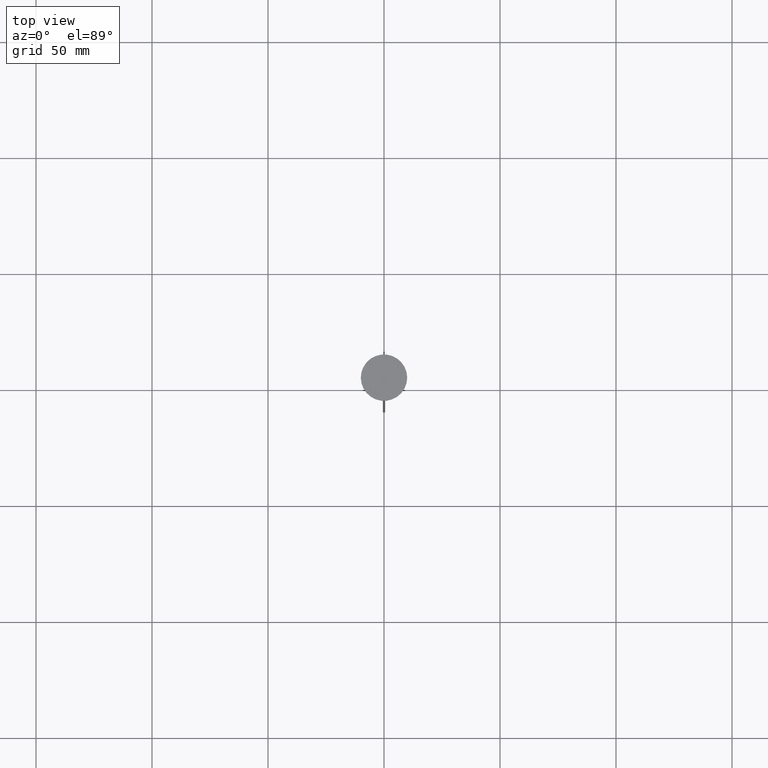
[diagram: clean part render]
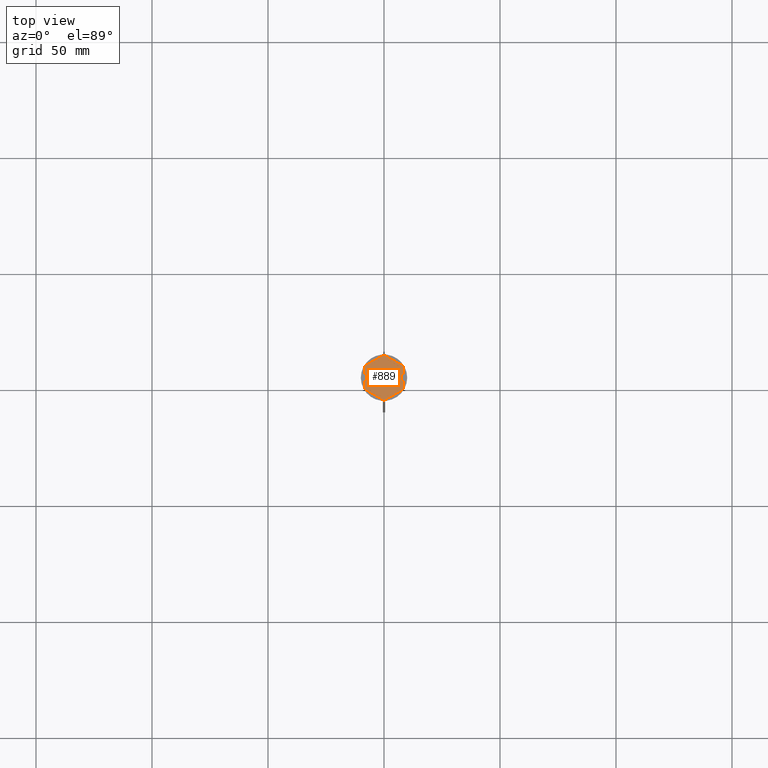
[diagram: same view with one face highlighted and labeled with its STEP entity id]
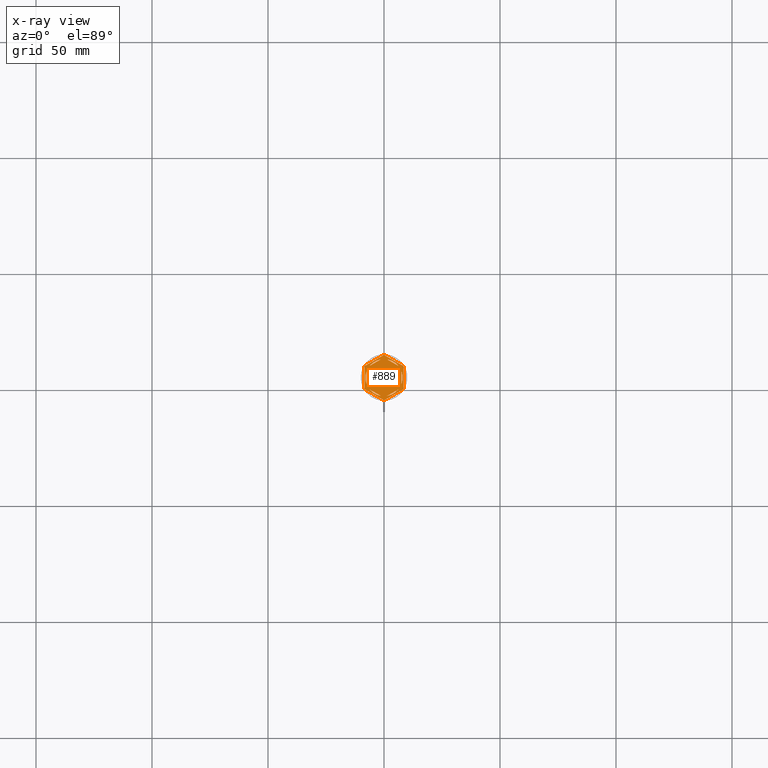
[diagram: x-ray of the same camera — body ghosted, the highlighted face saturated]
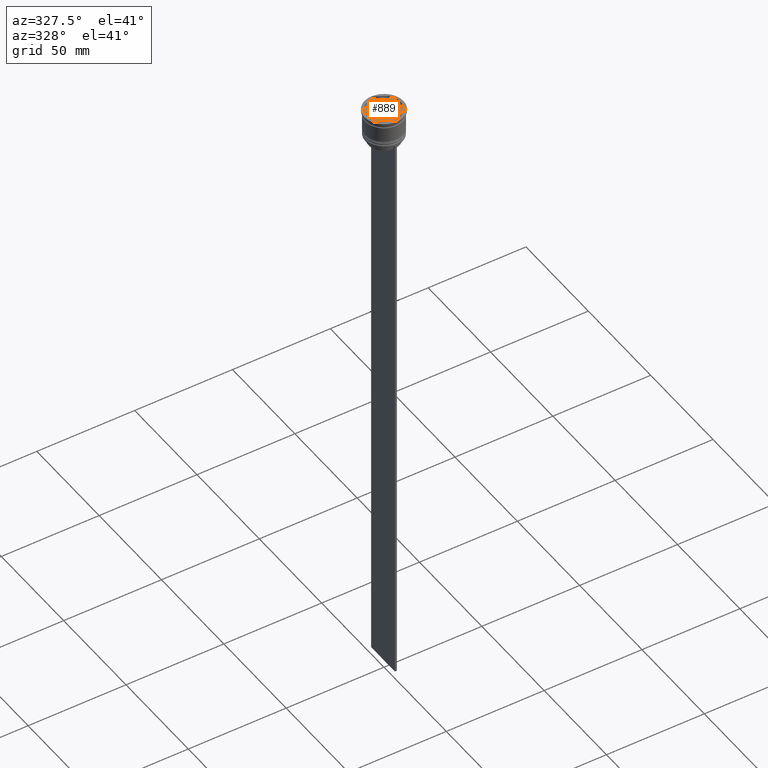
[diagram: same view with one face highlighted and labeled with its STEP entity id]
A machine part, top view. The second image highlights one B-rep face of the part: STEP entity #889.
The next image is the same camera in x-ray: the body ghosted, the highlighted face saturated — about 0% of this face is hidden behind the body in this view.
A second angle (auxiliary view) of the same face is appended — the face is thin or edge-on in the first view.
In plain terms, the highlighted planar face has unit normal (0, 0, 1).
Its self-contained STEP definition (entity closure, byte-faithful):
#8 = AXIS2_PLACEMENT_3D ( 'NONE', #2387, #1357, #2186 ) ;
#11 = ORIENTED_EDGE ( 'NONE', *, *, #1210, .F. ) ;
#15 = AXIS2_PLACEMENT_3D ( 'NONE', #690, #2579, #705 ) ;
#61 = ORIENTED_EDGE ( 'NONE', *, *, #2237, .F. ) ;
#82 = LINE ( 'NONE', #930, #1701 ) ;
#101 = CARTESIAN_POINT ( 'NONE',  ( 8.673617379884035472E-16, 8.660254037844385522, -1.000000000000000888 ) ) ;
#106 = EDGE_LOOP ( 'NONE', ( #2435, #2375 ) ) ;
#108 = CIRCLE ( 'NONE', #973, 9.699999999999990408 ) ;
#142 = CARTESIAN_POINT ( 'NONE',  ( 0.000000000000000000, 0.000000000000000000, -1.000000000000000000 ) ) ;
#160 = EDGE_CURVE ( 'NONE', #667, #1258, #2150, .T. ) ;
#167 = CARTESIAN_POINT ( 'NONE',  ( -6.160912690248241397, 5.103249437675783540, -1.000000000000000888 ) ) ;
#189 = ORIENTED_EDGE ( 'NONE', *, *, #2127, .T. ) ;
#190 = DIRECTION ( 'NONE',  ( -0.8660254037844384856, 0.5000000000000002220, 0.000000000000000000 ) ) ;
#210 = EDGE_CURVE ( 'NONE', #1524, #1473, #710, .T. ) ;
#211 = CARTESIAN_POINT ( 'NONE',  ( 7.500000000000000000, -4.330127018922195425, -1.000000000000000888 ) ) ;
#239 = CARTESIAN_POINT ( 'NONE',  ( 8.500000000000000000, 4.907477288111819824, -1.000000000000000000 ) ) ;
#273 = DIRECTION ( 'NONE',  ( 0.000000000000000000, 0.000000000000000000, 1.000000000000000000 ) ) ;
#276 = AXIS2_PLACEMENT_3D ( 'NONE', #2002, #998, #1780 ) ;
#282 = LINE ( 'NONE', #101, #1598 ) ;
#289 = VERTEX_POINT ( 'NONE', #1596 ) ;
#300 = LINE ( 'NONE', #1311, #362 ) ;
#310 = EDGE_CURVE ( 'NONE', #2295, #2291, #2033, .T. ) ;
#348 = DIRECTION ( 'NONE',  ( 0.000000000000000000, 0.000000000000000000, 1.000000000000000000 ) ) ;
#362 = VECTOR ( 'NONE', #2567, 1000.000000000000114 ) ;
#370 = VERTEX_POINT ( 'NONE', #1220 ) ;
#380 = VERTEX_POINT ( 'NONE', #167 ) ;
#398 = DIRECTION ( 'NONE',  ( -2.003086131649545704E-16, -1.000000000000000000, 0.000000000000000000 ) ) ;
#415 = CARTESIAN_POINT ( 'NONE',  ( -7.500000000000000000, 2.783882181415010759, -1.000000000000000888 ) ) ;
#418 = DIRECTION ( 'NONE',  ( -0.000000000000000000, -0.000000000000000000, -1.000000000000000000 ) ) ;
#426 = LINE ( 'NONE', #211, #1083 ) ;
#441 = DIRECTION ( 'NONE',  ( -0.000000000000000000, -0.000000000000000000, -1.000000000000000000 ) ) ;
#468 = CARTESIAN_POINT ( 'NONE',  ( -8.297221268969593666, -5.024551643058157602, -1.000000000000000000 ) ) ;
#480 = VECTOR ( 'NONE', #1939, 1000.000000000000114 ) ;
#485 = FACE_BOUND ( 'NONE', #1885, .T. ) ;
#533 = CARTESIAN_POINT ( 'NONE',  ( -7.500000000000000000, -4.330127018922193649, -1.000000000000000888 ) ) ;
#572 = DIRECTION ( 'NONE',  ( 0.000000000000000000, 0.000000000000000000, 1.000000000000000000 ) ) ;
#575 = AXIS2_PLACEMENT_3D ( 'NONE', #905, #2178, #2528 ) ;
#589 = ORIENTED_EDGE ( 'NONE', *, *, #903, .F. ) ;
#591 = DIRECTION ( 'NONE',  ( 1.000000000000000000, 0.000000000000000000, 0.000000000000000000 ) ) ;
#596 = CARTESIAN_POINT ( 'NONE',  ( 7.500000000000001776, 4.330127018922192761, -1.000000000000000888 ) ) ;
#602 = DIRECTION ( 'NONE',  ( 1.000000000000000000, 2.486899575160350651E-14, 0.000000000000000000 ) ) ;
#615 = CIRCLE ( 'NONE', #575, 9.699999999999990408 ) ;
#620 = VECTOR ( 'NONE', #1941, 1000.000000000000000 ) ;
#638 = ORIENTED_EDGE ( 'NONE', *, *, #2488, .T. ) ;
#649 = VERTEX_POINT ( 'NONE', #2396 ) ;
#653 = AXIS2_PLACEMENT_3D ( 'NONE', #801, #441, #2035 ) ;
#658 = CARTESIAN_POINT ( 'NONE',  ( 0.000000000000000000, 9.814954576223636096, -1.000000000000000000 ) ) ;
#667 = VERTEX_POINT ( 'NONE', #949 ) ;
#678 = DIRECTION ( 'NONE',  ( 1.000000000000000000, 0.000000000000000000, 0.000000000000000000 ) ) ;
#690 = CARTESIAN_POINT ( 'NONE',  ( 0.000000000000000000, 0.000000000000000000, -1.000000000000000000 ) ) ;
#705 = DIRECTION ( 'NONE',  ( 1.000000000000000000, 0.000000000000000000, -0.000000000000000000 ) ) ;
#710 = CIRCLE ( 'NONE', #8, 8.000000000000000000 ) ;
#725 = DIRECTION ( 'NONE',  ( 1.000000000000000000, 0.000000000000000000, 0.000000000000000000 ) ) ;
#741 = VERTEX_POINT ( 'NONE', #2101 ) ;
#764 = DIRECTION ( 'NONE',  ( 0.000000000000000000, 0.000000000000000000, 1.000000000000000000 ) ) ;
#775 = CARTESIAN_POINT ( 'NONE',  ( 7.500000000000001776, 2.783882181415006762, -1.000000000000000888 ) ) ;
#782 = CIRCLE ( 'NONE', #1558, 8.000000000000000000 ) ;
#787 = AXIS2_PLACEMENT_3D ( 'NONE', #1578, #1615, #591 ) ;
#801 = CARTESIAN_POINT ( 'NONE',  ( 0.000000000000000000, 0.000000000000000000, -1.000000000000000000 ) ) ;
#807 = ORIENTED_EDGE ( 'NONE', *, *, #2535, .F. ) ;
#816 = CARTESIAN_POINT ( 'NONE',  ( 0.000000000000000000, 0.000000000000000000, -1.000000000000000000 ) ) ;
#818 = ORIENTED_EDGE ( 'NONE', *, *, #864, .F. ) ;
#847 = VERTEX_POINT ( 'NONE', #2296 ) ;
#854 = ORIENTED_EDGE ( 'NONE', *, *, #1809, .F. ) ;
#864 = EDGE_CURVE ( 'NONE', #1819, #1725, #615, .T. ) ;
#865 = AXIS2_PLACEMENT_3D ( 'NONE', #1983, #348, #2388 ) ;
#873 = LINE ( 'NONE', #1720, #480 ) ;
#889 = ADVANCED_FACE ( 'NONE', ( #1754, #1333, #2376, #485, #1919, #2336, #932 ), #2124, .T. ) ;
#893 = CARTESIAN_POINT ( 'NONE',  ( -7.500000000000000000, 4.330127018922190985, -1.000000000000000888 ) ) ;
#899 = EDGE_CURVE ( 'NONE', #2229, #380, #1823, .T. ) ;
#903 = EDGE_CURVE ( 'NONE', #1878, #2284, #1498, .T. ) ;
#905 = CARTESIAN_POINT ( 'NONE',  ( 0.000000000000000000, 0.000000000000000000, -1.000000000000000000 ) ) ;
#922 = VERTEX_POINT ( 'NONE', #2323 ) ;
#930 = CARTESIAN_POINT ( 'NONE',  ( 8.729740977282959667E-16, -9.814954576223637872, -1.000000000000000000 ) ) ;
#932 = FACE_OUTER_BOUND ( 'NONE', #1325, .T. ) ;
#949 = CARTESIAN_POINT ( 'NONE',  ( -8.500000000000000000, 4.673328578219146934, -1.000000000000000000 ) ) ;
#952 = CARTESIAN_POINT ( 'NONE',  ( 8.500000000000000000, -4.907477288111818936, -1.000000000000000000 ) ) ;
#953 = AXIS2_PLACEMENT_3D ( 'NONE', #2618, #764, #1971 ) ;
#968 = CARTESIAN_POINT ( 'NONE',  ( 0.000000000000000000, 0.000000000000000000, -1.000000000000000000 ) ) ;
#969 = EDGE_CURVE ( 'NONE', #1366, #2621, #300, .T. ) ;
#973 = AXIS2_PLACEMENT_3D ( 'NONE', #2669, #418, #602 ) ;
#985 = ORIENTED_EDGE ( 'NONE', *, *, #1030, .F. ) ;
#998 = DIRECTION ( 'NONE',  ( -0.000000000000000000, -0.000000000000000000, -1.000000000000000000 ) ) ;
#1010 = ORIENTED_EDGE ( 'NONE', *, *, #310, .F. ) ;
#1014 = VERTEX_POINT ( 'NONE', #2190 ) ;
#1030 = EDGE_CURVE ( 'NONE', #667, #741, #1912, .T. ) ;
#1050 = CARTESIAN_POINT ( 'NONE',  ( -1.339087309751766819, -7.887131619090794743, -1.000000000000000888 ) ) ;
#1083 = VECTOR ( 'NONE', #398, 1000.000000000000000 ) ;
#1105 = EDGE_CURVE ( 'NONE', #1366, #1258, #1956, .T. ) ;
#1110 = ORIENTED_EDGE ( 'NONE', *, *, #1563, .F. ) ;
#1120 = CARTESIAN_POINT ( 'NONE',  ( -8.500000000000000000, 4.907477288111818936, -1.000000000000000000 ) ) ;
#1129 = DIRECTION ( 'NONE',  ( 0.8660254037844387076, 0.5000000000000001110, -0.000000000000000000 ) ) ;
#1173 = CIRCLE ( 'NONE', #1730, 8.000000000000000000 ) ;
#1180 = EDGE_CURVE ( 'NONE', #922, #847, #108, .T. ) ;
#1210 = EDGE_CURVE ( 'NONE', #2193, #2269, #1356, .T. ) ;
#1217 = CARTESIAN_POINT ( 'NONE',  ( 0.000000000000000000, 0.000000000000000000, -1.000000000000000000 ) ) ;
#1219 = VECTOR ( 'NONE', #1854, 1000.000000000000000 ) ;
#1220 = CARTESIAN_POINT ( 'NONE',  ( -8.000000000000000000, 0.000000000000000000, -1.000000000000000000 ) ) ;
#1239 = ORIENTED_EDGE ( 'NONE', *, *, #2094, .F. ) ;
#1258 = VERTEX_POINT ( 'NONE', #2482 ) ;
#1296 = EDGE_CURVE ( 'NONE', #289, #1725, #82, .T. ) ;
#1304 = VECTOR ( 'NONE', #2210, 1000.000000000000000 ) ;
#1311 = CARTESIAN_POINT ( 'NONE',  ( -8.500000000000000000, -4.907477288111819824, -1.000000000000000000 ) ) ;
#1325 = EDGE_LOOP ( 'NONE', ( #2103, #11, #189, #2026, #638, #985, #1577, #2572, #1411, #61, #1659, #818 ) ) ;
#1327 = CARTESIAN_POINT ( 'NONE',  ( 8.500000000000000000, -4.673328578219146934, -1.000000000000000000 ) ) ;
#1333 = FACE_BOUND ( 'NONE', #106, .T. ) ;
#1340 = DIRECTION ( 'NONE',  ( 0.000000000000000000, 0.000000000000000000, 1.000000000000000000 ) ) ;
#1342 = CIRCLE ( 'NONE', #653, 9.699999999999990408 ) ;
#1356 = CIRCLE ( 'NONE', #1612, 9.699999999999990408 ) ;
#1357 = DIRECTION ( 'NONE',  ( 0.000000000000000000, 0.000000000000000000, 1.000000000000000000 ) ) ;
#1366 = VERTEX_POINT ( 'NONE', #468 ) ;
#1391 = EDGE_LOOP ( 'NONE', ( #1959, #854 ) ) ;
#1411 = ORIENTED_EDGE ( 'NONE', *, *, #969, .T. ) ;
#1430 = AXIS2_PLACEMENT_3D ( 'NONE', #2351, #273, #678 ) ;
#1463 = CARTESIAN_POINT ( 'NONE',  ( -1.339087309751759047, 7.887131619090796519, -1.000000000000000888 ) ) ;
#1473 = VERTEX_POINT ( 'NONE', #775 ) ;
#1481 = DIRECTION ( 'NONE',  ( -0.8660254037844387076, -0.4999999999999997780, 0.000000000000000000 ) ) ;
#1498 = LINE ( 'NONE', #893, #2090 ) ;
#1506 = EDGE_CURVE ( 'NONE', #1014, #1699, #2354, .T. ) ;
#1513 = VECTOR ( 'NONE', #1813, 1000.000000000000000 ) ;
#1524 = VERTEX_POINT ( 'NONE', #1815 ) ;
#1558 = AXIS2_PLACEMENT_3D ( 'NONE', #968, #1340, #725 ) ;
#1563 = EDGE_CURVE ( 'NONE', #370, #1878, #2673, .T. ) ;
#1577 = ORIENTED_EDGE ( 'NONE', *, *, #160, .T. ) ;
#1578 = CARTESIAN_POINT ( 'NONE',  ( 0.000000000000000000, 0.000000000000000000, -1.000000000000000000 ) ) ;
#1596 = CARTESIAN_POINT ( 'NONE',  ( 0.2027787310304044188, -9.697880221277303647, -1.000000000000000000 ) ) ;
#1598 = VECTOR ( 'NONE', #1129, 999.9999999999998863 ) ;
#1608 = DIRECTION ( 'NONE',  ( 1.000000000000000000, 0.000000000000000000, 0.000000000000000000 ) ) ;
#1612 = AXIS2_PLACEMENT_3D ( 'NONE', #816, #2466, #2110 ) ;
#1615 = DIRECTION ( 'NONE',  ( -0.000000000000000000, -0.000000000000000000, -1.000000000000000000 ) ) ;
#1635 = EDGE_CURVE ( 'NONE', #1473, #1524, #426, .T. ) ;
#1638 = AXIS2_PLACEMENT_3D ( 'NONE', #1217, #2046, #1608 ) ;
#1659 = ORIENTED_EDGE ( 'NONE', *, *, #1296, .T. ) ;
#1694 = CARTESIAN_POINT ( 'NONE',  ( 8.297221268969593666, -5.024551643058152273, -1.000000000000000000 ) ) ;
#1699 = VERTEX_POINT ( 'NONE', #1050 ) ;
#1701 = VECTOR ( 'NONE', #2374, 1000.000000000000227 ) ;
#1717 = CARTESIAN_POINT ( 'NONE',  ( 8.297221268969593666, 5.024551643058155825, -1.000000000000000000 ) ) ;
#1720 = CARTESIAN_POINT ( 'NONE',  ( -1.301042606982605321E-15, -8.660254037844387298, -1.000000000000000888 ) ) ;
#1725 = VERTEX_POINT ( 'NONE', #1694 ) ;
#1729 = EDGE_LOOP ( 'NONE', ( #2429, #589, #1110 ) ) ;
#1730 = AXIS2_PLACEMENT_3D ( 'NONE', #142, #572, #1787 ) ;
#1754 = FACE_BOUND ( 'NONE', #2307, .T. ) ;
#1760 = CARTESIAN_POINT ( 'NONE',  ( 6.160912690248236068, -5.103249437675787981, -1.000000000000000888 ) ) ;
#1780 = DIRECTION ( 'NONE',  ( 1.000000000000000000, 0.000000000000000000, 0.000000000000000000 ) ) ;
#1787 = DIRECTION ( 'NONE',  ( 1.000000000000000000, 0.000000000000000000, 0.000000000000000000 ) ) ;
#1809 = EDGE_CURVE ( 'NONE', #380, #2229, #282, .T. ) ;
#1813 = DIRECTION ( 'NONE',  ( -0.8660254037844388186, 0.4999999999999997224, 0.000000000000000000 ) ) ;
#1815 = CARTESIAN_POINT ( 'NONE',  ( 7.500000000000000000, -2.783882181415009427, -1.000000000000000888 ) ) ;
#1817 = VECTOR ( 'NONE', #1481, 1000.000000000000114 ) ;
#1819 = VERTEX_POINT ( 'NONE', #1327 ) ;
#1823 = CIRCLE ( 'NONE', #1430, 8.000000000000000000 ) ;
#1830 = CARTESIAN_POINT ( 'NONE',  ( 8.500000000000000000, 4.673328578219146934, -1.000000000000000000 ) ) ;
#1854 = DIRECTION ( 'NONE',  ( 0.8660254037844387076, -0.4999999999999998890, 0.000000000000000000 ) ) ;
#1878 = VERTEX_POINT ( 'NONE', #1968 ) ;
#1885 = EDGE_LOOP ( 'NONE', ( #2581, #2232 ) ) ;
#1906 = VECTOR ( 'NONE', #190, 1000.000000000000114 ) ;
#1912 = CIRCLE ( 'NONE', #276, 9.699999999999990408 ) ;
#1919 = FACE_BOUND ( 'NONE', #1729, .T. ) ;
#1924 = EDGE_CURVE ( 'NONE', #2284, #370, #1173, .T. ) ;
#1939 = DIRECTION ( 'NONE',  ( -0.8660254037844387076, -0.4999999999999997780, 0.000000000000000000 ) ) ;
#1941 = DIRECTION ( 'NONE',  ( 0.000000000000000000, -1.000000000000000000, 0.000000000000000000 ) ) ;
#1956 = CIRCLE ( 'NONE', #787, 9.699999999999990408 ) ;
#1959 = ORIENTED_EDGE ( 'NONE', *, *, #899, .F. ) ;
#1968 = CARTESIAN_POINT ( 'NONE',  ( -7.500000000000000000, -2.783882181415010759, -1.000000000000000888 ) ) ;
#1971 = DIRECTION ( 'NONE',  ( 1.000000000000000000, 0.000000000000000000, 0.000000000000000000 ) ) ;
#1983 = CARTESIAN_POINT ( 'NONE',  ( 0.000000000000000000, 0.000000000000000000, -1.000000000000000000 ) ) ;
#1986 = ORIENTED_EDGE ( 'NONE', *, *, #2414, .F. ) ;
#2002 = CARTESIAN_POINT ( 'NONE',  ( 0.000000000000000000, 0.000000000000000000, -1.000000000000000000 ) ) ;
#2026 = ORIENTED_EDGE ( 'NONE', *, *, #1180, .F. ) ;
#2033 = LINE ( 'NONE', #596, #1219 ) ;
#2035 = DIRECTION ( 'NONE',  ( 1.000000000000000000, 0.000000000000000000, 0.000000000000000000 ) ) ;
#2046 = DIRECTION ( 'NONE',  ( 0.000000000000000000, 0.000000000000000000, 1.000000000000000000 ) ) ;
#2050 = CARTESIAN_POINT ( 'NONE',  ( 6.160912690248237844, 5.103249437675785316, -1.000000000000000888 ) ) ;
#2090 = VECTOR ( 'NONE', #2141, 1000.000000000000000 ) ;
#2094 = EDGE_CURVE ( 'NONE', #2291, #2295, #2122, .T. ) ;
#2101 = CARTESIAN_POINT ( 'NONE',  ( -8.297221268969593666, 5.024551643058155825, -1.000000000000000000 ) ) ;
#2103 = ORIENTED_EDGE ( 'NONE', *, *, #2619, .T. ) ;
#2110 = DIRECTION ( 'NONE',  ( 1.000000000000000000, 0.000000000000000000, 0.000000000000000000 ) ) ;
#2122 = CIRCLE ( 'NONE', #1638, 8.000000000000000000 ) ;
#2124 = PLANE ( 'NONE',  #15 ) ;
#2127 = EDGE_CURVE ( 'NONE', #2193, #847, #2286, .T. ) ;
#2141 = DIRECTION ( 'NONE',  ( 0.000000000000000000, 1.000000000000000000, 0.000000000000000000 ) ) ;
#2150 = LINE ( 'NONE', #1120, #620 ) ;
#2178 = DIRECTION ( 'NONE',  ( -0.000000000000000000, -0.000000000000000000, -1.000000000000000000 ) ) ;
#2186 = DIRECTION ( 'NONE',  ( 1.000000000000000000, 0.000000000000000000, 0.000000000000000000 ) ) ;
#2190 = CARTESIAN_POINT ( 'NONE',  ( -6.160912690248237844, -5.103249437675787092, -1.000000000000000888 ) ) ;
#2193 = VERTEX_POINT ( 'NONE', #1717 ) ;
#2210 = DIRECTION ( 'NONE',  ( 0.000000000000000000, 1.000000000000000000, 0.000000000000000000 ) ) ;
#2229 = VERTEX_POINT ( 'NONE', #1463 ) ;
#2232 = ORIENTED_EDGE ( 'NONE', *, *, #2582, .F. ) ;
#2237 = EDGE_CURVE ( 'NONE', #289, #2621, #1342, .T. ) ;
#2269 = VERTEX_POINT ( 'NONE', #1830 ) ;
#2284 = VERTEX_POINT ( 'NONE', #415 ) ;
#2286 = LINE ( 'NONE', #239, #1513 ) ;
#2291 = VERTEX_POINT ( 'NONE', #2050 ) ;
#2295 = VERTEX_POINT ( 'NONE', #2461 ) ;
#2296 = CARTESIAN_POINT ( 'NONE',  ( 0.2027787310304000890, 9.697880221277303647, -1.000000000000000000 ) ) ;
#2307 = EDGE_LOOP ( 'NONE', ( #1239, #1010 ) ) ;
#2323 = CARTESIAN_POINT ( 'NONE',  ( -0.2027787310304009494, 9.697880221277303647, -1.000000000000000000 ) ) ;
#2336 = FACE_BOUND ( 'NONE', #1391, .T. ) ;
#2351 = CARTESIAN_POINT ( 'NONE',  ( 0.000000000000000000, 0.000000000000000000, -1.000000000000000000 ) ) ;
#2354 = CIRCLE ( 'NONE', #865, 8.000000000000000000 ) ;
#2371 = LINE ( 'NONE', #533, #1906 ) ;
#2374 = DIRECTION ( 'NONE',  ( 0.8660254037844385966, 0.5000000000000000000, 0.000000000000000000 ) ) ;
#2375 = ORIENTED_EDGE ( 'NONE', *, *, #1635, .F. ) ;
#2376 = FACE_BOUND ( 'NONE', #2465, .T. ) ;
#2387 = CARTESIAN_POINT ( 'NONE',  ( 0.000000000000000000, 0.000000000000000000, -1.000000000000000000 ) ) ;
#2388 = DIRECTION ( 'NONE',  ( 1.000000000000000000, 0.000000000000000000, 0.000000000000000000 ) ) ;
#2396 = CARTESIAN_POINT ( 'NONE',  ( 1.339087309751762156, -7.887131619090794743, -1.000000000000000888 ) ) ;
#2398 = LINE ( 'NONE', #952, #1304 ) ;
#2410 = CARTESIAN_POINT ( 'NONE',  ( -0.2027787310304044188, -9.697880221277303647, -1.000000000000000000 ) ) ;
#2414 = EDGE_CURVE ( 'NONE', #2643, #649, #873, .T. ) ;
#2429 = ORIENTED_EDGE ( 'NONE', *, *, #1924, .F. ) ;
#2435 = ORIENTED_EDGE ( 'NONE', *, *, #210, .F. ) ;
#2461 = CARTESIAN_POINT ( 'NONE',  ( 1.339087309751760380, 7.887131619090794743, -1.000000000000000888 ) ) ;
#2465 = EDGE_LOOP ( 'NONE', ( #807, #1986 ) ) ;
#2466 = DIRECTION ( 'NONE',  ( -0.000000000000000000, -0.000000000000000000, -1.000000000000000000 ) ) ;
#2482 = CARTESIAN_POINT ( 'NONE',  ( -8.500000000000000000, -4.673328578219146934, -1.000000000000000000 ) ) ;
#2488 = EDGE_CURVE ( 'NONE', #922, #741, #2507, .T. ) ;
#2507 = LINE ( 'NONE', #658, #1817 ) ;
#2528 = DIRECTION ( 'NONE',  ( 1.000000000000000000, 0.000000000000000000, 0.000000000000000000 ) ) ;
#2535 = EDGE_CURVE ( 'NONE', #649, #2643, #782, .T. ) ;
#2567 = DIRECTION ( 'NONE',  ( 0.8660254037844387076, -0.4999999999999997780, 0.000000000000000000 ) ) ;
#2572 = ORIENTED_EDGE ( 'NONE', *, *, #1105, .F. ) ;
#2579 = DIRECTION ( 'NONE',  ( 0.000000000000000000, 0.000000000000000000, 1.000000000000000000 ) ) ;
#2581 = ORIENTED_EDGE ( 'NONE', *, *, #1506, .F. ) ;
#2582 = EDGE_CURVE ( 'NONE', #1699, #1014, #2371, .T. ) ;
#2618 = CARTESIAN_POINT ( 'NONE',  ( 0.000000000000000000, 0.000000000000000000, -1.000000000000000000 ) ) ;
#2619 = EDGE_CURVE ( 'NONE', #1819, #2269, #2398, .T. ) ;
#2621 = VERTEX_POINT ( 'NONE', #2410 ) ;
#2643 = VERTEX_POINT ( 'NONE', #1760 ) ;
#2669 = CARTESIAN_POINT ( 'NONE',  ( 0.000000000000000000, 0.000000000000000000, -1.000000000000000000 ) ) ;
#2673 = CIRCLE ( 'NONE', #953, 8.000000000000000000 ) ;